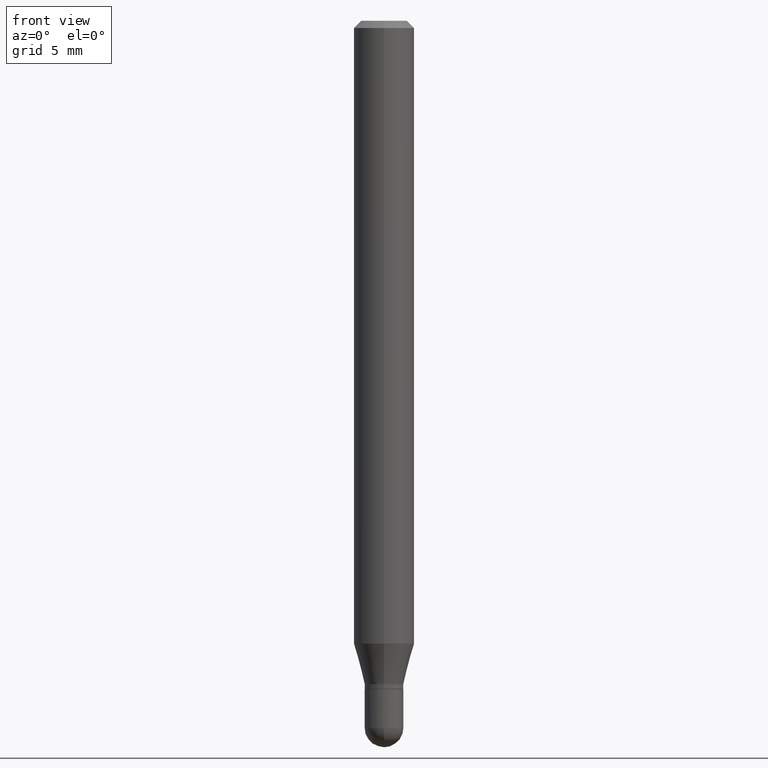
[diagram: clean part render]
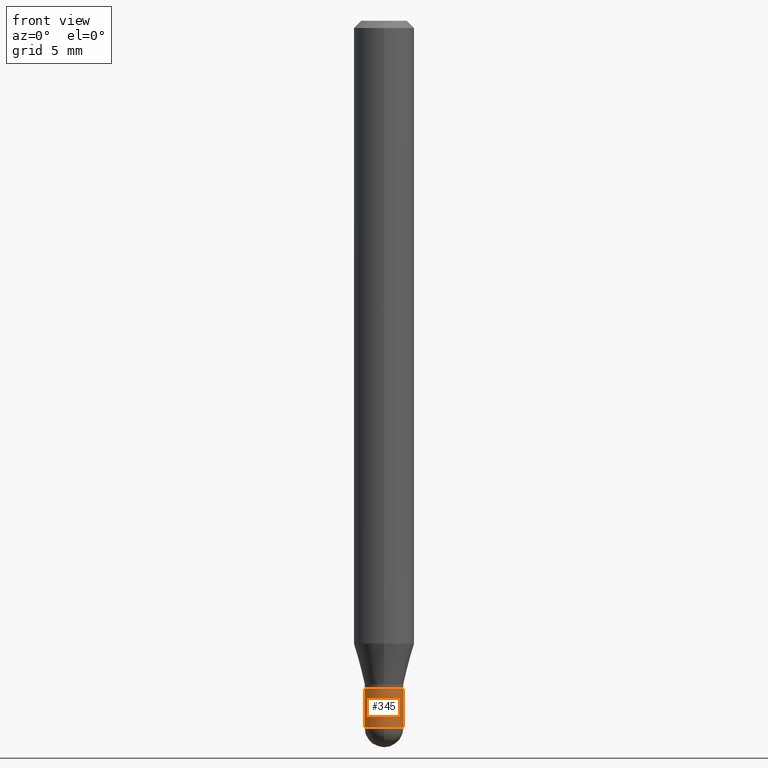
[diagram: same view with one face highlighted and labeled with its STEP entity id]
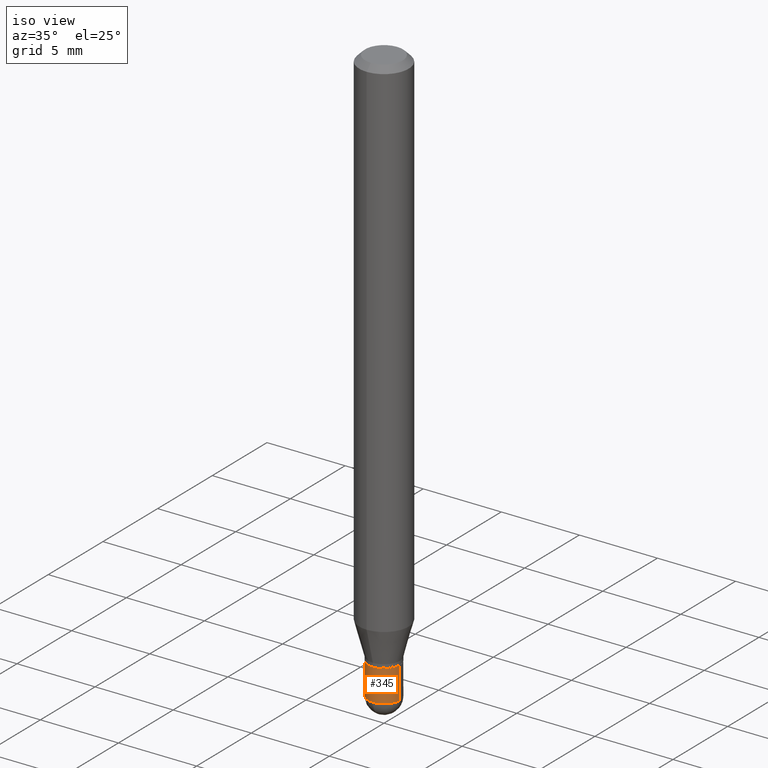
[diagram: same view with one face highlighted and labeled with its STEP entity id]
A machine part, front view. The second image highlights one B-rep face of the part: STEP entity #345.
A second angle (iso view) of the same face is appended — the face is thin or edge-on in the first view.
In plain terms, the highlighted cylindrical surface (edge-blend (fillet) strip) has radius 1.016 mm, axis along (-0, 0, 1).
Its self-contained STEP definition (entity closure, byte-faithful):
#5 = DIRECTION ( 'NONE',  ( -2.445468806185136597E-29, 3.491481338843145583E-15, 1.000000000000000000 ) ) ;
#7 = CIRCLE ( 'NONE', #372, 0.04000000000000000083 ) ;
#33 = CARTESIAN_POINT ( 'NONE',  ( -0.04000000000000000083, 2.842170943040400803E-16, -1.967574036101962509E-30 ) ) ;
#42 = EDGE_CURVE ( 'NONE', #491, #256, #7, .T. ) ;
#45 = ORIENTED_EDGE ( 'NONE', *, *, #200, .T. ) ;
#48 = LINE ( 'NONE', #363, #148 ) ;
#67 = AXIS2_PLACEMENT_3D ( 'NONE', #69, #222, #454 ) ;
#69 = CARTESIAN_POINT ( 'NONE',  ( 0.000000000000000000, 0.000000000000000000, 0.000000000000000000 ) ) ;
#78 = AXIS2_PLACEMENT_3D ( 'NONE', #167, #321, #480 ) ;
#84 = EDGE_CURVE ( 'NONE', #375, #102, #380, .T. ) ;
#92 = DIRECTION ( 'NONE',  ( -2.445468806185136877E-29, 3.491481338843145188E-15, 1.000000000000000000 ) ) ;
#95 = CARTESIAN_POINT ( 'NONE',  ( -0.04000000000000000083, -4.673686406853227813E-15, -1.460000000000000187 ) ) ;
#102 = VERTEX_POINT ( 'NONE', #179 ) ;
#140 = CIRCLE ( 'NONE', #382, 0.04000000000000000083 ) ;
#146 = DIRECTION ( 'NONE',  ( -2.445468806185136597E-29, 3.491481338843145583E-15, 1.000000000000000000 ) ) ;
#148 = VECTOR ( 'NONE', #358, 39.37007874015748143 ) ;
#167 = CARTESIAN_POINT ( 'NONE',  ( 3.374746952535488593E-29, -4.818244247603541543E-15, -1.380000000000000115 ) ) ;
#175 = EDGE_CURVE ( 'NONE', #256, #180, #48, .T. ) ;
#179 = CARTESIAN_POINT ( 'NONE',  ( -0.04000000000000000083, -4.673686406853227813E-15, -1.380000000000000115 ) ) ;
#180 = VERTEX_POINT ( 'NONE', #447 ) ;
#200 = EDGE_CURVE ( 'NONE', #375, #491, #140, .T. ) ;
#209 = DIRECTION ( 'NONE',  ( 1.000000000000000000, -6.982962677686259611E-15, 0.000000000000000000 ) ) ;
#222 = DIRECTION ( 'NONE',  ( -2.445468806185136597E-29, 3.491481338843145583E-15, 1.000000000000000000 ) ) ;
#239 = CARTESIAN_POINT ( 'NONE',  ( 3.570384457030299835E-29, -5.097562754710993947E-15, -1.460000000000000187 ) ) ;
#241 = EDGE_CURVE ( 'NONE', #102, #180, #288, .T. ) ;
#248 = EDGE_LOOP ( 'NONE', ( #343, #45, #428, #315, #388 ) ) ;
#256 = VERTEX_POINT ( 'NONE', #440 ) ;
#260 = CARTESIAN_POINT ( 'NONE',  ( 3.570384457030299835E-29, -5.097562754710993947E-15, -1.460000000000000187 ) ) ;
#288 = CIRCLE ( 'NONE', #78, 0.04000000000000000083 ) ;
#295 = FACE_OUTER_BOUND ( 'NONE', #248, .T. ) ;
#315 = ORIENTED_EDGE ( 'NONE', *, *, #175, .T. ) ;
#321 = DIRECTION ( 'NONE',  ( -2.445468806185136597E-29, 3.491481338843145583E-15, 1.000000000000000000 ) ) ;
#333 = VECTOR ( 'NONE', #92, 39.37007874015748143 ) ;
#342 = CARTESIAN_POINT ( 'NONE',  ( -2.793185071074156233E-16, -0.04000000000000520500, -1.459999999999999964 ) ) ;
#343 = ORIENTED_EDGE ( 'NONE', *, *, #84, .F. ) ;
#345 = ADVANCED_FACE ( 'NONE', ( #295 ), #490, .T. ) ;
#346 = DIRECTION ( 'NONE',  ( 1.000000000000000000, -6.982962677686259611E-15, 0.000000000000000000 ) ) ;
#358 = DIRECTION ( 'NONE',  ( -2.445468806185136877E-29, 3.491481338843145188E-15, 1.000000000000000000 ) ) ;
#363 = CARTESIAN_POINT ( 'NONE',  ( 0.04000000000000000083, -2.793185071074506290E-16, 1.950470710318374387E-30 ) ) ;
#372 = AXIS2_PLACEMENT_3D ( 'NONE', #260, #146, #346 ) ;
#375 = VERTEX_POINT ( 'NONE', #95 ) ;
#380 = LINE ( 'NONE', #33, #333 ) ;
#382 = AXIS2_PLACEMENT_3D ( 'NONE', #239, #5, #209 ) ;
#388 = ORIENTED_EDGE ( 'NONE', *, *, #241, .F. ) ;
#428 = ORIENTED_EDGE ( 'NONE', *, *, #42, .T. ) ;
#440 = CARTESIAN_POINT ( 'NONE',  ( 0.04000000000000000083, -5.237222008264718177E-15, -1.460000000000000187 ) ) ;
#447 = CARTESIAN_POINT ( 'NONE',  ( 0.04000000000000000083, -5.097562754710991580E-15, -1.380000000000000115 ) ) ;
#454 = DIRECTION ( 'NONE',  ( 1.000000000000000000, -6.982962677686265922E-15, 4.876176775795935793E-29 ) ) ;
#480 = DIRECTION ( 'NONE',  ( 1.000000000000000000, -6.982962677686259611E-15, 0.000000000000000000 ) ) ;
#490 = CYLINDRICAL_SURFACE ( 'NONE', #67, 0.04000000000000000083 ) ;
#491 = VERTEX_POINT ( 'NONE', #342 ) ;